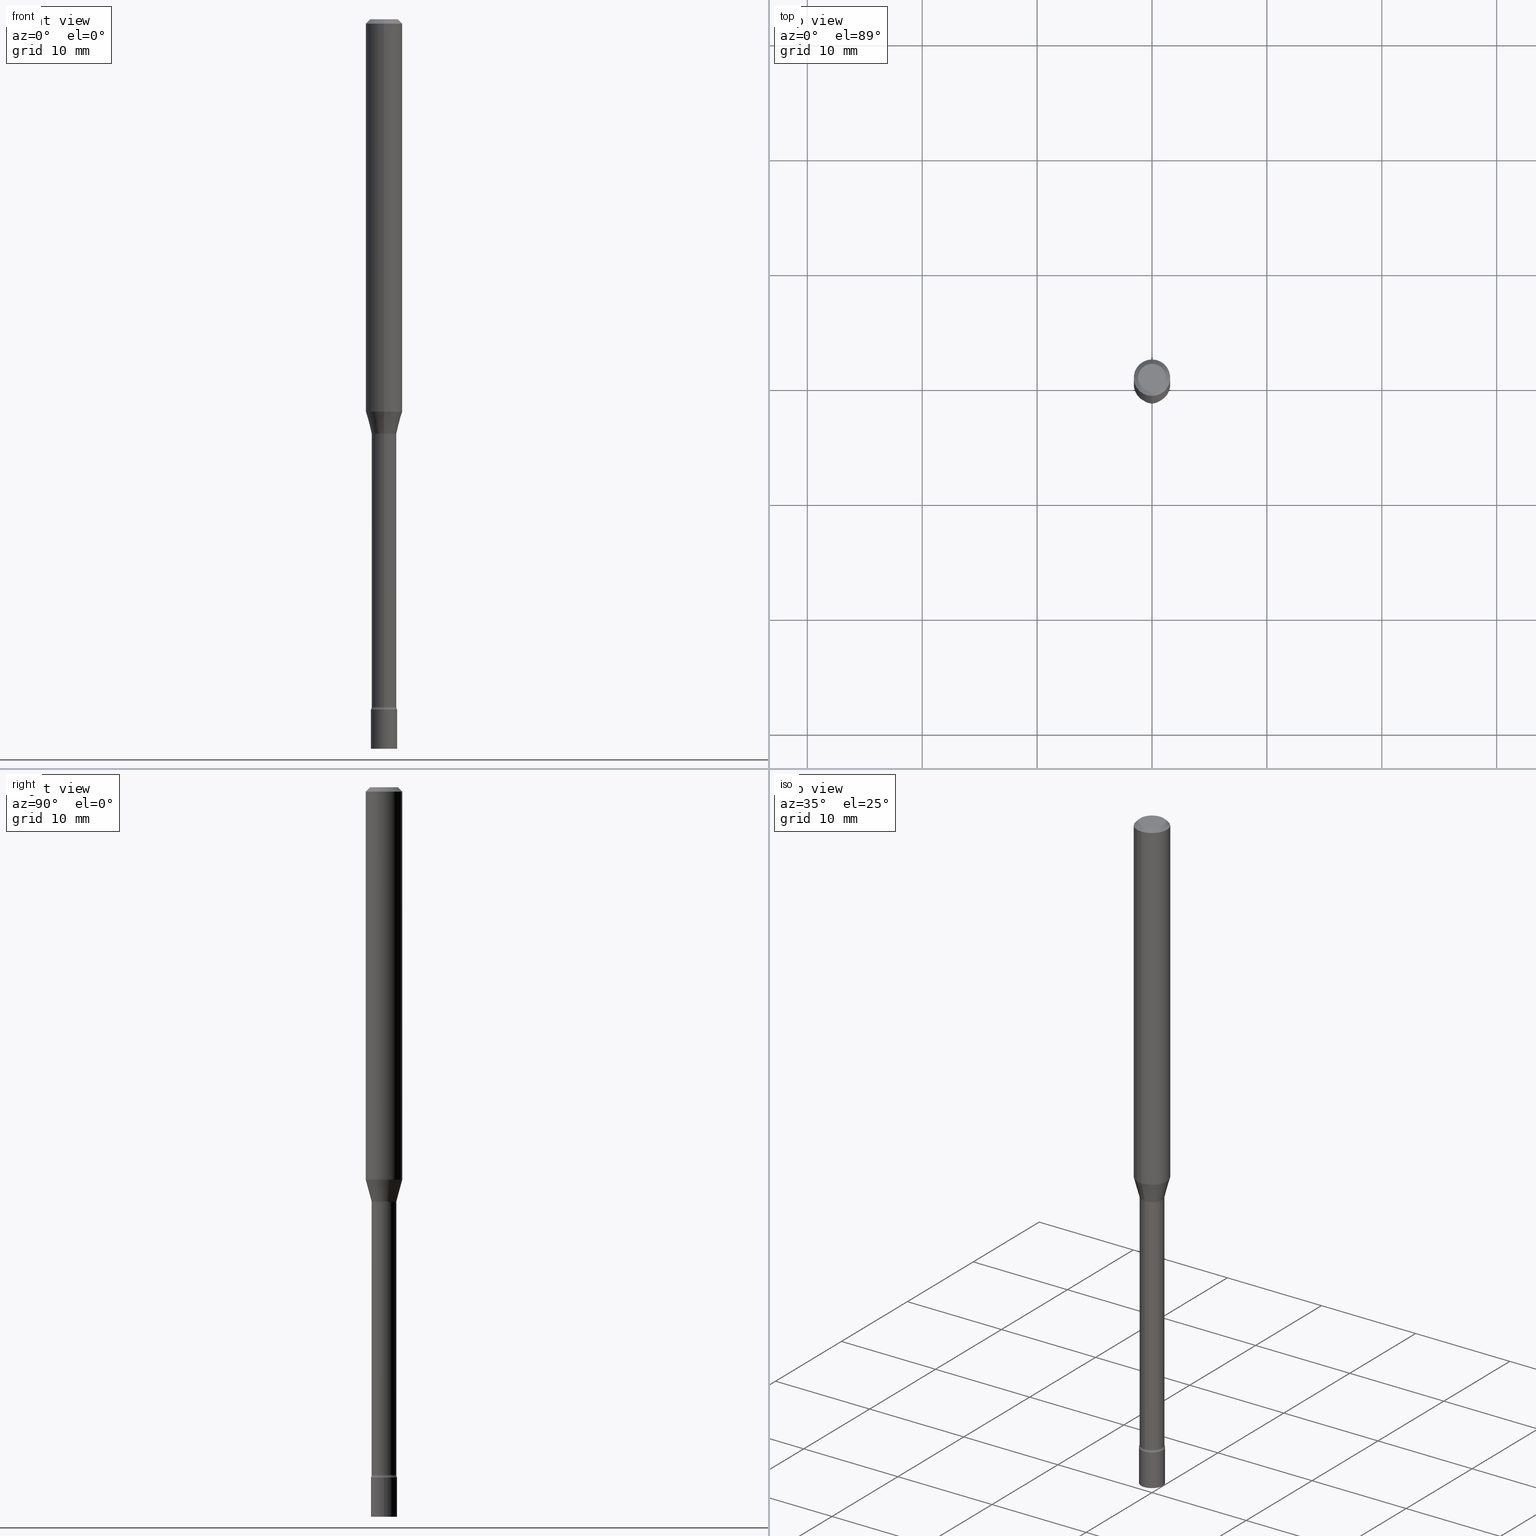
[diagram: canonical four-view strip — front | top / right | iso, engineering-drawing reading convention]
A machine part, canonical four-view strip (front | top / right | iso — engineering-drawing reading convention). The complete STEP part file that produces these views, byte-faithful:
ISO-10303-21;
HEADER;
FILE_DESCRIPTION (( 'STEP AP203' ),
    '1' );
FILE_NAME ('09735.STEP',
    '2024-03-09T01:26:27',
    ( '' ),
    ( '' ),
    'SwSTEP 2.0',
    'SolidWorks 2023',
    '' );
FILE_SCHEMA (( 'CONFIG_CONTROL_DESIGN' ));
ENDSEC;

DATA;
#1 = ORIENTED_EDGE ( 'NONE', *, *, #379, .F. ) ;
#2 = DIRECTION ( 'NONE',  ( 1.000000000000000000, -6.982962677686246989E-15, 0.000000000000000000 ) ) ;
#3 = ORIENTED_EDGE ( 'NONE', *, *, #379, .T. ) ;
#4 = CARTESIAN_POINT ( 'NONE',  ( 6.113672015462842613E-29, -8.728703347107864943E-15, -2.500000000000000000 ) ) ;
#5 = AXIS2_PLACEMENT_3D ( 'NONE', #251, #126, #422 ) ;
#6 = CC_DESIGN_APPROVAL ( #96, ( #69 ) ) ;
#7 = CARTESIAN_POINT ( 'NONE',  ( 3.101519041593418202E-16, 0.04229999999999190657, -2.356414547187247965 ) ) ;
#8 = PRODUCT_DEFINITION ( 'UNKNOWN', '', #69, #354 ) ;
#9 = CARTESIAN_POINT ( 'NONE',  ( -2.953793212660724034E-16, -0.04230000000000836563, -2.356414547187247077 ) ) ;
#10 = DATE_TIME_ROLE ( 'creation_date' ) ;
#11 = ORIENTED_EDGE ( 'NONE', *, *, #13, .T. ) ;
#12 = DIRECTION ( 'NONE',  ( -6.982962677686265922E-15, -1.000000000000000000, 3.483106191921935554E-15 ) ) ;
#13 = EDGE_CURVE ( 'NONE', #449, #453, #165, .T. ) ;
#14 = VERTEX_POINT ( 'NONE', #404 ) ;
#15 = CARTESIAN_POINT ( 'NONE',  ( 0.000000000000000000, 0.000000000000000000, 0.000000000000000000 ) ) ;
#16 = APPROVAL_DATE_TIME ( #60, #96 ) ;
#17 = ORIENTED_EDGE ( 'NONE', *, *, #19, .T. ) ;
#18 = DIRECTION ( 'NONE',  ( -2.445535940486029483E-29, 3.491385198703219756E-15, 1.000000000000000000 ) ) ;
#19 = EDGE_CURVE ( 'NONE', #298, #228, #145, .T. ) ;
#20 = CARTESIAN_POINT ( 'NONE',  ( 3.477394985924490148E-29, -4.964798434735345074E-15, -1.421974787463811118 ) ) ;
#21 = PERSON_AND_ORGANIZATION ( #448, #175 ) ;
#22 = ORIENTED_EDGE ( 'NONE', *, *, #123, .F. ) ;
#23 = PLANE ( 'NONE',  #353 ) ;
#24 = ORIENTED_EDGE ( 'NONE', *, *, #474, .F. ) ;
#25 = AXIS2_PLACEMENT_3D ( 'NONE', #316, #270, #347 ) ;
#26 = AXIS2_PLACEMENT_3D ( 'NONE', #409, #238, #487 ) ;
#27 = CARTESIAN_POINT ( 'NONE',  ( -4.287811248607203282E-16, -0.06250000000000005551, -0.01499999999999981209 ) ) ;
#28 = VERTEX_POINT ( 'NONE', #74 ) ;
#29 = CARTESIAN_POINT ( 'NONE',  ( 5.783533726627847872E-29, -8.257353366364040046E-15, -2.365000000000000213 ) ) ;
#30 = DIRECTION ( 'NONE',  ( -2.445535940486029483E-29, 3.491385198703219756E-15, 1.000000000000000000 ) ) ;
#31 = EDGE_LOOP ( 'NONE', ( #231, #401, #428, #485 ) ) ;
#32 = CIRCLE ( 'NONE', #5, 0.04499999999999999833 ) ;
#33 = CARTESIAN_POINT ( 'NONE',  ( 7.072117627707223109E-46, -1.009655446076081752E-31, -2.891847758451547595E-17 ) ) ;
#34 = DIRECTION ( 'NONE',  ( -6.982962677686266711E-15, -1.000000000000000000, 3.491385198703219756E-15 ) ) ;
#35 = APPROVAL_STATUS ( 'not_yet_approved' ) ;
#36 = EDGE_CURVE ( 'NONE', #453, #472, #233, .T. ) ;
#37 = FACE_OUTER_BOUND ( 'NONE', #93, .T. ) ;
#38 = CLOSED_SHELL ( 'NONE', ( #127, #450, #323, #109 ) ) ;
#39 = LOCAL_TIME ( 20, 26, 27.00000000000000000, #475 ) ;
#40 = EDGE_CURVE ( 'NONE', #228, #180, #68, .T. ) ;
#41 = APPROVAL ( #35, 'UNSPECIFIED' ) ;
#42 = CARTESIAN_POINT ( 'NONE',  ( -4.364351673553584879E-16, -0.06250000000000466294, -1.344612573687108847 ) ) ;
#43 = DATE_AND_TIME ( #46, #152 ) ;
#44 = DIRECTION ( 'NONE',  ( -2.445468806185136597E-29, 3.491481338843145583E-15, 1.000000000000000000 ) ) ;
#45 = DIRECTION ( 'NONE',  ( -2.445535940486029483E-29, 3.491385198703219756E-15, 1.000000000000000000 ) ) ;
#46 = CALENDAR_DATE ( 2024, 8, 3 ) ;
#47 = DIRECTION ( 'NONE',  ( -2.445535940486029483E-29, 3.491385198703219756E-15, 1.000000000000000000 ) ) ;
#48 = VECTOR ( 'NONE', #94, 39.37007874015748143 ) ;
#49 = VECTOR ( 'NONE', #455, 39.37007874015748854 ) ;
#50 = FACE_OUTER_BOUND ( 'NONE', #255, .T. ) ;
#51 = PERSON_AND_ORGANIZATION_ROLE ( 'creator' ) ;
#52 = ORIENTED_EDGE ( 'NONE', *, *, #281, .F. ) ;
#53 = DIRECTION ( 'NONE',  ( -6.982962677686265922E-15, -1.000000000000000000, 3.491385198703219756E-15 ) ) ;
#54 = ORIENTED_EDGE ( 'NONE', *, *, #169, .T. ) ;
#55 = LINE ( 'NONE', #504, #124 ) ;
#56 = ORIENTED_EDGE ( 'NONE', *, *, #123, .T. ) ;
#57 = AXIS2_PLACEMENT_3D ( 'NONE', #154, #30, #190 ) ;
#58 = CIRCLE ( 'NONE', #432, 0.01500000000000001853 ) ;
#59 = FACE_OUTER_BOUND ( 'NONE', #517, .T. ) ;
#60 = DATE_AND_TIME ( #146, #209 ) ;
#61 = ORIENTED_EDGE ( 'NONE', *, *, #509, .T. ) ;
#62 = PERSON_AND_ORGANIZATION_ROLE ( 'creator' ) ;
#63 = ORIENTED_EDGE ( 'NONE', *, *, #400, .T. ) ;
#64 =( LENGTH_UNIT ( ) NAMED_UNIT ( * ) SI_UNIT ( $, .METRE. ) );
#65 = ADVANCED_FACE ( 'NONE', ( #429 ), #198, .T. ) ;
#66 = COORDINATED_UNIVERSAL_TIME_OFFSET ( 5, 0, .BEHIND. ) ;
#67 = EDGE_LOOP ( 'NONE', ( #433, #220, #375, #206 ) ) ;
#68 = CIRCLE ( 'NONE', #279, 0.04230000000000001120 ) ;
#69 = PRODUCT_DEFINITION_FORMATION_WITH_SPECIFIED_SOURCE ( 'ANY', '', #203, .NOT_KNOWN. ) ;
#70 = DIRECTION ( 'NONE',  ( -6.982962677686265133E-15, -1.000000000000000000, 6.070773319253918263E-15 ) ) ;
#71 = ORIENTED_EDGE ( 'NONE', *, *, #488, .F. ) ;
#72 = CARTESIAN_POINT ( 'NONE',  ( 3.142333204959430697E-16, 0.04499999999999127615, -2.500000000000000000 ) ) ;
#73 = DIRECTION ( 'NONE',  ( 2.445535940486029483E-29, -3.491385198703219756E-15, -1.000000000000000000 ) ) ;
#74 = CARTESIAN_POINT ( 'NONE',  ( 3.197442310921028066E-16, 0.04499999999999173411, -2.365000000000000213 ) ) ;
#75 = ADVANCED_BREP_SHAPE_REPRESENTATION ( '09735', ( #119, #300, #77 ), #408 ) ;
#76 = AXIS2_PLACEMENT_3D ( 'NONE', #183, #143, #306 ) ;
#77 = AXIS2_PLACEMENT_3D ( 'NONE', #268, #446, #159 ) ;
#78 = ADVANCED_FACE ( 'NONE', ( #395 ), #390, .F. ) ;
#79 = ORIENTED_EDGE ( 'NONE', *, *, #478, .F. ) ;
#80 = CARTESIAN_POINT ( 'NONE',  ( -0.04499999999999999833, 3.197442310920450718E-16, -2.213520790614707560E-30 ) ) ;
#81 = APPROVAL ( #100, 'UNSPECIFIED' ) ;
#82 = EDGE_LOOP ( 'NONE', ( #101, #378, #351, #1 ) ) ;
#83 = CIRCLE ( 'NONE', #391, 0.04499999999999999833 ) ;
#84 = DIRECTION ( 'NONE',  ( 2.445535940486029203E-29, -3.491385198703219756E-15, -1.000000000000000000 ) ) ;
#85 = ORIENTED_EDGE ( 'NONE', *, *, #106, .T. ) ;
#86 = DIRECTION ( 'NONE',  ( 7.105427357600998703E-15, 1.000000000000000000, 0.000000000000000000 ) ) ;
#87 = CARTESIAN_POINT ( 'NONE',  ( -2.989484015155409821E-16, -0.04281111260566894394, -1.418092501787272974 ) ) ;
#88 = CIRCLE ( 'NONE', #131, 0.04499999999999999833 ) ;
#89 = ORIENTED_EDGE ( 'NONE', *, *, #191, .F. ) ;
#90 = DIMENSIONAL_EXPONENTS ( 1.000000000000000000, 0.000000000000000000, 0.000000000000000000, 0.000000000000000000, 0.000000000000000000, 0.000000000000000000, 0.000000000000000000 ) ;
#91 = DIRECTION ( 'NONE',  ( -2.445535940486029483E-29, 3.491385198703219756E-15, 1.000000000000000000 ) ) ;
#92 = CARTESIAN_POINT ( 'NONE',  ( 5.783692499249460010E-29, -8.257125994933115699E-15, -2.365000000000000213 ) ) ;
#93 = EDGE_LOOP ( 'NONE', ( #11, #85 ) ) ;
#94 = DIRECTION ( 'NONE',  ( -2.445535940486029483E-29, 3.491385198703219756E-15, 1.000000000000000000 ) ) ;
#95 = ORIENTED_EDGE ( 'NONE', *, *, #286, .F. ) ;
#96 = APPROVAL ( #505, 'UNSPECIFIED' ) ;
#97 = CARTESIAN_POINT ( 'NONE',  ( 4.440892098500625669E-16, 0.06250000000000000000, -2.182115749189512101E-16 ) ) ;
#98 = EDGE_CURVE ( 'NONE', #176, #219, #459, .T. ) ;
#99 = DIRECTION ( 'NONE',  ( -2.445535940486029483E-29, 3.491385198703219756E-15, 1.000000000000000000 ) ) ;
#100 = APPROVAL_STATUS ( 'not_yet_approved' ) ;
#101 = ORIENTED_EDGE ( 'NONE', *, *, #373, .F. ) ;
#102 = AXIS2_PLACEMENT_3D ( 'NONE', #129, #47, #216 ) ;
#103 = SECURITY_CLASSIFICATION ( '', '', #512 ) ;
#104 = FACE_OUTER_BOUND ( 'NONE', #141, .T. ) ;
#105 = ORIENTED_EDGE ( 'NONE', *, *, #509, .F. ) ;
#106 = EDGE_CURVE ( 'NONE', #453, #449, #193, .T. ) ;
#107 = FACE_OUTER_BOUND ( 'NONE', #31, .T. ) ;
#108 = ORIENTED_EDGE ( 'NONE', *, *, #286, .T. ) ;
#109 = ADVANCED_FACE ( 'NONE', ( #435 ), #23, .T. ) ;
#110 = AXIS2_PLACEMENT_3D ( 'NONE', #202, #321, #365 ) ;
#111 = DIRECTION ( 'NONE',  ( -2.445535940486029483E-29, 3.491385198703219756E-15, 1.000000000000000000 ) ) ;
#112 = CARTESIAN_POINT ( 'NONE',  ( 3.668303910729051459E-31, -5.237077798054840974E-17, -0.01500000000000003067 ) ) ;
#113 = DIRECTION ( 'NONE',  ( -2.445535940486029483E-29, 3.491385198703219756E-15, 1.000000000000000000 ) ) ;
#114 = ADVANCED_FACE ( 'NONE', ( #396 ), #245, .T. ) ;
#115 = DIRECTION ( 'NONE',  ( -2.445535940486029483E-29, 3.491385198703219756E-15, 1.000000000000000000 ) ) ;
#116 = UNCERTAINTY_MEASURE_WITH_UNIT (LENGTH_MEASURE( 1.000000000000000082E-05 ), #393, 'distance_accuracy_value', 'NONE');
#117 = VECTOR ( 'NONE', #358, 39.37007874015748143 ) ;
#118 = CIRCLE ( 'NONE', #451, 0.04230000000000013610 ) ;
#119 = MANIFOLD_SOLID_BREP ( 'Body-Move/Copy2[1]', #38 ) ;
#120 = CARTESIAN_POINT ( 'NONE',  ( -4.001237614313663153E-16, -0.05730000000000835814, -2.356414547187247521 ) ) ;
#121 = CARTESIAN_POINT ( 'NONE',  ( -4.364351673553916201E-16, -0.06250000000000000000, 2.182115749189512101E-16 ) ) ;
#122 = CARTESIAN_POINT ( 'NONE',  ( 4.071409875905721427E-16, 0.05729999999999503546, -1.421974787463811563 ) ) ;
#123 = EDGE_CURVE ( 'NONE', #287, #298, #234, .T. ) ;
#124 = VECTOR ( 'NONE', #297, 39.37007874015748143 ) ;
#125 = DIRECTION ( 'NONE',  ( 6.982962677686265922E-15, 1.000000000000000000, -3.491385198703219756E-15 ) ) ;
#126 = DIRECTION ( 'NONE',  ( -2.445468806185136597E-29, 3.491481338843145583E-15, 1.000000000000000000 ) ) ;
#127 = ADVANCED_FACE ( 'NONE', ( #386 ), #392, .T. ) ;
#128 = ORIENTED_EDGE ( 'NONE', *, *, #361, .F. ) ;
#129 = CARTESIAN_POINT ( 'NONE',  ( 5.762538269587287845E-29, -8.227377418082797086E-15, -2.356414547187247965 ) ) ;
#130 = CONICAL_SURFACE ( 'NONE', #110, 0.04281111260566399651, 0.2617993877991504625 ) ;
#131 = AXIS2_PLACEMENT_3D ( 'NONE', #406, #196, #490 ) ;
#132 = ORIENTED_EDGE ( 'NONE', *, *, #474, .T. ) ;
#133 = CARTESIAN_POINT ( 'NONE',  ( 0.04499999999999999833, -3.142333204958819823E-16, 2.194279549108170967E-30 ) ) ;
#134 = CYLINDRICAL_SURFACE ( 'NONE', #239, 0.06250000000000000000 ) ;
#135 = ADVANCED_FACE ( 'NONE', ( #439 ), #360, .T. ) ;
#136 = ORIENTED_EDGE ( 'NONE', *, *, #307, .F. ) ;
#137 = DIRECTION ( 'NONE',  ( -2.445468806185136597E-29, 3.491481338843145583E-15, 1.000000000000000000 ) ) ;
#138 = DATE_TIME_ROLE ( 'classification_date' ) ;
#139 = ORIENTED_EDGE ( 'NONE', *, *, #197, .F. ) ;
#140 = CALENDAR_DATE ( 2024, 8, 3 ) ;
#141 = EDGE_LOOP ( 'NONE', ( #139, #267, #326, #150 ) ) ;
#142 = AXIS2_PLACEMENT_3D ( 'NONE', #168, #413, #170 ) ;
#143 = DIRECTION ( 'NONE',  ( 2.445535940486029483E-29, -3.491385198703219756E-15, -1.000000000000000000 ) ) ;
#144 = DATE_AND_TIME ( #184, #39 ) ;
#145 = LINE ( 'NONE', #440, #289 ) ;
#146 = CALENDAR_DATE ( 2024, 8, 3 ) ;
#147 = CARTESIAN_POINT ( 'NONE',  ( -4.364351673553912750E-16, -0.06250000000000005551, -0.01499999999999981209 ) ) ;
#148 = DIRECTION ( 'NONE',  ( 6.982962677686265922E-15, 1.000000000000000000, -3.483106191921935554E-15 ) ) ;
#149 = DIRECTION ( 'NONE',  ( -6.982962677686265133E-15, -1.000000000000000000, 6.070773319253918263E-15 ) ) ;
#150 = ORIENTED_EDGE ( 'NONE', *, *, #410, .F. ) ;
#151 = AXIS2_PLACEMENT_3D ( 'NONE', #479, #113, #34 ) ;
#152 = LOCAL_TIME ( 20, 26, 27.00000000000000000, #201 ) ;
#153 = APPROVAL_PERSON_ORGANIZATION ( #468, #81, #263 ) ;
#154 = CARTESIAN_POINT ( 'NONE',  ( 3.467996180054525973E-29, -4.951107171132105151E-15, -1.418092501787273196 ) ) ;
#155 = ADVANCED_FACE ( 'NONE', ( #107 ), #494, .T. ) ;
#156 = EDGE_LOOP ( 'NONE', ( #340, #132, #421, #506 ) ) ;
#157 = EDGE_CURVE ( 'NONE', #176, #472, #235, .T. ) ;
#158 = DIRECTION ( 'NONE',  ( -2.445535940486029483E-29, 3.491385198703219756E-15, 1.000000000000000000 ) ) ;
#159 = DIRECTION ( 'NONE',  ( 1.000000000000000000, 0.000000000000000000, 0.000000000000000000 ) ) ;
#160 = CC_DESIGN_DATE_AND_TIME_ASSIGNMENT ( #204, #10, ( #8 ) ) ;
#161 = AXIS2_PLACEMENT_3D ( 'NONE', #120, #164, #322 ) ;
#162 = CARTESIAN_POINT ( 'NONE',  ( -0.04499999999999999833, -8.173284125643907127E-15, -2.365000000000000213 ) ) ;
#163 = ORIENTED_EDGE ( 'NONE', *, *, #269, .F. ) ;
#164 = DIRECTION ( 'NONE',  ( -1.000000000000000000, 6.982962677686265922E-15, -4.883557194083112340E-29 ) ) ;
#165 = CIRCLE ( 'NONE', #151, 0.04749999999999999362 ) ;
#166 = AXIS2_PLACEMENT_3D ( 'NONE', #285, #288, #53 ) ;
#167 = DIRECTION ( 'NONE',  ( -1.000000000000000000, 6.982962677686265922E-15, -4.883557194083112340E-29 ) ) ;
#168 = CARTESIAN_POINT ( 'NONE',  ( 0.000000000000000000, 0.000000000000000000, 0.000000000000000000 ) ) ;
#169 = EDGE_CURVE ( 'NONE', #287, #192, #237, .T. ) ;
#170 = DIRECTION ( 'NONE',  ( -6.982962677686266711E-15, -1.000000000000000000, 3.491385198703219756E-15 ) ) ;
#171 = PERSON_AND_ORGANIZATION ( #448, #175 ) ;
#172 = VERTEX_POINT ( 'NONE', #162 ) ;
#173 = DIRECTION ( 'NONE',  ( -2.445535940486029483E-29, 3.491385198703219756E-15, 1.000000000000000000 ) ) ;
#174 = CC_DESIGN_DATE_AND_TIME_ASSIGNMENT ( #144, #138, ( #103 ) ) ;
#175 = ORGANIZATION ( 'UNSPECIFIED', 'UNSPECIFIED', '' ) ;
#176 = VERTEX_POINT ( 'NONE', #42 ) ;
#177 = DIRECTION ( 'NONE',  ( -2.445535940486029483E-29, 3.491385198703219756E-15, 1.000000000000000000 ) ) ;
#178 = ADVANCED_FACE ( 'NONE', ( #486 ), #130, .T. ) ;
#179 = PERSON_AND_ORGANIZATION ( #448, #175 ) ;
#180 = VERTEX_POINT ( 'NONE', #276 ) ;
#181 = EDGE_LOOP ( 'NONE', ( #258, #436, #355, #303 ) ) ;
#182 = DIRECTION ( 'NONE',  ( 1.000000000000000000, -6.982962677686265922E-15, 4.876176775795935793E-29 ) ) ;
#183 = CARTESIAN_POINT ( 'NONE',  ( 3.668303910729051459E-31, -5.237077798054840974E-17, -0.01500000000000003067 ) ) ;
#184 = CALENDAR_DATE ( 2024, 8, 3 ) ;
#185 = EDGE_LOOP ( 'NONE', ( #52, #223, #277, #425 ) ) ;
#186 = AXIS2_PLACEMENT_3D ( 'NONE', #280, #275, #329 ) ;
#187 = PERSON_AND_ORGANIZATION ( #448, #175 ) ;
#188 = DIRECTION ( 'NONE',  ( -6.982962677686265133E-15, -1.000000000000000000, 6.458269488567996591E-15 ) ) ;
#189 = DIRECTION ( 'NONE',  ( -2.445535940486029483E-29, 3.491385198703219756E-15, 1.000000000000000000 ) ) ;
#190 = DIRECTION ( 'NONE',  ( -6.982962677686265133E-15, -1.000000000000000000, 6.381165607227956499E-15 ) ) ;
#191 = EDGE_CURVE ( 'NONE', #368, #14, #407, .T. ) ;
#192 = VERTEX_POINT ( 'NONE', #447 ) ;
#193 = CIRCLE ( 'NONE', #328, 0.04749999999999999362 ) ;
#194 = VECTOR ( 'NONE', #380, 39.37007874015748143 ) ;
#195 = ORIENTED_EDGE ( 'NONE', *, *, #191, .T. ) ;
#196 = DIRECTION ( 'NONE',  ( -2.445468806185136597E-29, 3.491481338843145583E-15, 1.000000000000000000 ) ) ;
#197 = EDGE_CURVE ( 'NONE', #336, #414, #362, .T. ) ;
#198 = CONICAL_SURFACE ( 'NONE', #499, 0.06250000000000000000, 0.7853981633974483900 ) ;
#199 = CARTESIAN_POINT ( 'NONE',  ( 3.316907271900976096E-16, 0.04749999999999999362, -1.803000357306606801E-16 ) ) ;
#200 = TOROIDAL_SURFACE ( 'NONE', #218, 0.05730000000000000371, 0.01500000000000001506 ) ;
#201 = COORDINATED_UNIVERSAL_TIME_OFFSET ( 5, 0, .BEHIND. ) ;
#202 = CARTESIAN_POINT ( 'NONE',  ( 3.467996180054525973E-29, -4.951107171132105151E-15, -1.418092501787273196 ) ) ;
#203 = PRODUCT ( '09735', '09735', '', ( #352 ) ) ;
#204 = DATE_AND_TIME ( #374, #227 ) ;
#205 = ORIENTED_EDGE ( 'NONE', *, *, #36, .F. ) ;
#206 = ORIENTED_EDGE ( 'NONE', *, *, #400, .F. ) ;
#207 = DIRECTION ( 'NONE',  ( -6.982962677686266711E-15, -1.000000000000000000, 6.458269488567977659E-15 ) ) ;
#208 = CIRCLE ( 'NONE', #265, 0.06250000000000000000 ) ;
#209 = LOCAL_TIME ( 20, 26, 27.00000000000000000, #377 ) ;
#210 = FACE_OUTER_BOUND ( 'NONE', #250, .T. ) ;
#211 = COORDINATED_UNIVERSAL_TIME_OFFSET ( 5, 0, .BEHIND. ) ;
#212 = EDGE_LOOP ( 'NONE', ( #56, #17, #503, #343 ) ) ;
#213 = CC_DESIGN_PERSON_AND_ORGANIZATION_ASSIGNMENT ( #21, #387, ( #103 ) ) ;
#214 = CYLINDRICAL_SURFACE ( 'NONE', #443, 0.04499999999999999833 ) ;
#215 = VERTEX_POINT ( 'NONE', #324 ) ;
#216 = DIRECTION ( 'NONE',  ( -6.982962677686265922E-15, -1.000000000000000000, 3.491385198703219756E-15 ) ) ;
#217 = EDGE_CURVE ( 'NONE', #180, #228, #471, .T. ) ;
#218 = AXIS2_PLACEMENT_3D ( 'NONE', #20, #430, #427 ) ;
#219 = VERTEX_POINT ( 'NONE', #444 ) ;
#220 = ORIENTED_EDGE ( 'NONE', *, *, #269, .T. ) ;
#221 = DIRECTION ( 'NONE',  ( -2.445535940486029483E-29, 3.491385198703219756E-15, 1.000000000000000000 ) ) ;
#222 = PERSON_AND_ORGANIZATION_ROLE ( 'design_supplier' ) ;
#223 = ORIENTED_EDGE ( 'NONE', *, *, #424, .F. ) ;
#224 = DIRECTION ( 'NONE',  ( -6.982962677686266711E-15, -1.000000000000000000, 3.491385198703219756E-15 ) ) ;
#225 = APPROVAL_ROLE ( '' ) ;
#226 = AXIS2_PLACEMENT_3D ( 'NONE', #199, #84, #125 ) ;
#227 = LOCAL_TIME ( 20, 26, 27.00000000000000000, #211 ) ;
#228 = VERTEX_POINT ( 'NONE', #236 ) ;
#229 = EDGE_CURVE ( 'NONE', #14, #368, #88, .T. ) ;
#230 = DIRECTION ( 'NONE',  ( -1.000000000000000000, 6.982962677686265922E-15, -4.876176775795935793E-29 ) ) ;
#231 = ORIENTED_EDGE ( 'NONE', *, *, #98, .T. ) ;
#232 = DIRECTION ( 'NONE',  ( -6.982962677686265133E-15, -1.000000000000000000, 6.381165607227956499E-15 ) ) ;
#233 = LINE ( 'NONE', #27, #117 ) ;
#234 = CIRCLE ( 'NONE', #262, 0.04230000000000013610 ) ;
#235 = LINE ( 'NONE', #121, #482 ) ;
#236 = CARTESIAN_POINT ( 'NONE',  ( 3.005595772265802916E-16, 0.04229999999999504295, -1.421974787463811563 ) ) ;
#237 = CIRCLE ( 'NONE', #161, 0.01499999999999999424 ) ;
#238 = DIRECTION ( 'NONE',  ( -2.445535940486029483E-29, 3.491385198703219756E-15, 1.000000000000000000 ) ) ;
#239 = AXIS2_PLACEMENT_3D ( 'NONE', #15, #253, #244 ) ;
#240 = EDGE_LOOP ( 'NONE', ( #205, #469, #507, #3 ) ) ;
#241 = ADVANCED_FACE ( 'NONE', ( #37 ), #452, .F. ) ;
#242 = LINE ( 'NONE', #80, #290 ) ;
#243 = DIRECTION ( 'NONE',  ( -2.445535940486029483E-29, 3.491385198703219756E-15, 1.000000000000000000 ) ) ;
#244 = DIRECTION ( 'NONE',  ( -6.982962677686265922E-15, -1.000000000000000000, 3.491385198703219362E-15 ) ) ;
#245 = CONICAL_SURFACE ( 'NONE', #57, 0.04281111260566399651, 0.2617993877991504625 ) ;
#246 = AXIS2_PLACEMENT_3D ( 'NONE', #344, #309, #260 ) ;
#247 = LOCAL_TIME ( 20, 26, 27.00000000000000000, #66 ) ;
#248 = ORIENTED_EDGE ( 'NONE', *, *, #307, .T. ) ;
#249 = FACE_OUTER_BOUND ( 'NONE', #82, .T. ) ;
#250 = EDGE_LOOP ( 'NONE', ( #95, #252, #338, #128 ) ) ;
#251 = CARTESIAN_POINT ( 'NONE',  ( 5.783533726627847872E-29, -8.257353366364040046E-15, -2.365000000000000213 ) ) ;
#252 = ORIENTED_EDGE ( 'NONE', *, *, #229, .T. ) ;
#253 = DIRECTION ( 'NONE',  ( -2.445535940486029483E-29, 3.491385198703219756E-15, 1.000000000000000000 ) ) ;
#254 = SHAPE_DEFINITION_REPRESENTATION ( #464, #75 ) ;
#255 = EDGE_LOOP ( 'NONE', ( #105, #79 ) ) ;
#256 = CC_DESIGN_APPROVAL ( #81, ( #103 ) ) ;
#257 = CARTESIAN_POINT ( 'NONE',  ( -3.773273898774340269E-16, -0.04749999999999999362, 1.369223193538874600E-16 ) ) ;
#258 = ORIENTED_EDGE ( 'NONE', *, *, #106, .F. ) ;
#259 = DIRECTION ( 'NONE',  ( -2.445535940486029483E-29, 3.491385198703219756E-15, 1.000000000000000000 ) ) ;
#260 = DIRECTION ( 'NONE',  ( 7.105427357600997914E-15, 1.000000000000000000, 0.000000000000000000 ) ) ;
#261 = CARTESIAN_POINT ( 'NONE',  ( 5.783692499249460010E-29, -8.257125994933115699E-15, -2.365000000000000213 ) ) ;
#262 = AXIS2_PLACEMENT_3D ( 'NONE', #473, #115, #511 ) ;
#263 = APPROVAL_ROLE ( '' ) ;
#264 = FACE_OUTER_BOUND ( 'NONE', #212, .T. ) ;
#265 = AXIS2_PLACEMENT_3D ( 'NONE', #112, #189, #437 ) ;
#266 = DIRECTION ( 'NONE',  ( -6.982962677686266711E-15, -1.000000000000000000, 3.491385198703219756E-15 ) ) ;
#267 = ORIENTED_EDGE ( 'NONE', *, *, #281, .T. ) ;
#268 = CARTESIAN_POINT ( 'NONE',  ( 0.000000000000000000, 0.000000000000000000, 0.000000000000000000 ) ) ;
#269 = EDGE_CURVE ( 'NONE', #336, #219, #284, .T. ) ;
#270 = DIRECTION ( 'NONE',  ( -2.445468806185136597E-29, 3.491481338843145583E-15, 1.000000000000000000 ) ) ;
#271 = EDGE_LOOP ( 'NONE', ( #24, #22, #54, #61 ) ) ;
#272 = CARTESIAN_POINT ( 'NONE',  ( 3.668303910729051459E-31, -5.237077798054840974E-17, -0.01500000000000003067 ) ) ;
#273 = CIRCLE ( 'NONE', #330, 0.01500000000000001853 ) ;
#274 = CIRCLE ( 'NONE', #282, 0.06250000000000000000 ) ;
#275 = DIRECTION ( 'NONE',  ( -2.445535940486029483E-29, 3.491385198703219756E-15, 1.000000000000000000 ) ) ;
#276 = CARTESIAN_POINT ( 'NONE',  ( -2.953793212660943436E-16, -0.04230000000000497945, -1.421974787463810896 ) ) ;
#277 = ORIENTED_EDGE ( 'NONE', *, *, #410, .T. ) ;
#278 = PRODUCT_RELATED_PRODUCT_CATEGORY ( 'detail', '', ( #203 ) ) ;
#279 = AXIS2_PLACEMENT_3D ( 'NONE', #519, #259, #188 ) ;
#280 = CARTESIAN_POINT ( 'NONE',  ( 3.477490449207734053E-29, -4.964661725880308206E-15, -1.421974787463811118 ) ) ;
#281 = EDGE_CURVE ( 'NONE', #336, #228, #273, .T. ) ;
#282 = AXIS2_PLACEMENT_3D ( 'NONE', #420, #91, #12 ) ;
#283 = APPROVAL_PERSON_ORGANIZATION ( #171, #96, #225 ) ;
#284 = LINE ( 'NONE', #364, #49 ) ;
#285 = CARTESIAN_POINT ( 'NONE',  ( 3.142333204959397663E-16, 0.04499999999999174105, -2.365000000000000213 ) ) ;
#286 = EDGE_CURVE ( 'NONE', #14, #172, #242, .T. ) ;
#287 = VERTEX_POINT ( 'NONE', #9 ) ;
#288 = DIRECTION ( 'NONE',  ( -2.445535940486029203E-29, 3.491385198703219756E-15, 1.000000000000000000 ) ) ;
#289 = VECTOR ( 'NONE', #158, 39.37007874015748143 ) ;
#290 = VECTOR ( 'NONE', #466, 39.37007874015748143 ) ;
#291 = ADVANCED_FACE ( 'NONE', ( #249 ), #134, .T. ) ;
#292 = APPLICATION_CONTEXT ( 'configuration controlled 3d designs of mechanical parts and assemblies' ) ;
#293 = EDGE_LOOP ( 'NONE', ( #163, #397, #63, #71 ) ) ;
#294 = DIRECTION ( 'NONE',  ( -2.445468806185136877E-29, 3.491481338843145188E-15, 1.000000000000000000 ) ) ;
#295 = CARTESIAN_POINT ( 'NONE',  ( 0.000000000000000000, 0.000000000000000000, 0.000000000000000000 ) ) ;
#296 = ORIENTED_EDGE ( 'NONE', *, *, #382, .T. ) ;
#297 = DIRECTION ( 'NONE',  ( 4.937700262164548042E-15, 0.7071067811865451302, -0.7071067811865499042 ) ) ;
#298 = VERTEX_POINT ( 'NONE', #7 ) ;
#299 = CYLINDRICAL_SURFACE ( 'NONE', #489, 0.04230000000000006671 ) ;
#300 = MANIFOLD_SOLID_BREP ( 'Body-Move/Copy2[2]', #508 ) ;
#301 = LENGTH_MEASURE_WITH_UNIT ( LENGTH_MEASURE( 0.02539999999999999897 ), #64 );
#302 = AXIS2_PLACEMENT_3D ( 'NONE', #419, #177, #232 ) ;
#303 = ORIENTED_EDGE ( 'NONE', *, *, #394, .F. ) ;
#304 = CC_DESIGN_APPROVAL ( #41, ( #8 ) ) ;
#305 = CARTESIAN_POINT ( 'NONE',  ( 0.04499999999999999833, -8.571586686859921733E-15, -2.365000000000000213 ) ) ;
#306 = DIRECTION ( 'NONE',  ( 6.982962677686265922E-15, 1.000000000000000000, -3.483106191921935554E-15 ) ) ;
#307 = EDGE_CURVE ( 'NONE', #465, #172, #510, .T. ) ;
#308 = DATE_AND_TIME ( #140, #247 ) ;
#309 = DIRECTION ( 'NONE',  ( 1.000000000000000000, -7.105427357601001070E-15, 4.926314331164936241E-29 ) ) ;
#310 = DIRECTION ( 'NONE',  ( -2.445535940486029483E-29, 3.491385198703219756E-15, 1.000000000000000000 ) ) ;
#311 = CARTESIAN_POINT ( 'NONE',  ( 3.288298374981245001E-29, -4.694560437761416498E-15, -1.344612573687109069 ) ) ;
#312 = AXIS2_PLACEMENT_3D ( 'NONE', #4, #44, #2 ) ;
#313 = AXIS2_PLACEMENT_3D ( 'NONE', #29, #470, #182 ) ;
#314 = ADVANCED_FACE ( 'NONE', ( #50 ), #415, .F. ) ;
#315 = PERSON_AND_ORGANIZATION ( #448, #175 ) ;
#316 = CARTESIAN_POINT ( 'NONE',  ( 0.000000000000000000, 0.000000000000000000, 0.000000000000000000 ) ) ;
#317 = APPLICATION_PROTOCOL_DEFINITION ( 'international standard', 'config_control_design', 1994, #350 ) ;
#318 = CARTESIAN_POINT ( 'NONE',  ( 5.762538269587287845E-29, -8.227377418082797086E-15, -2.356414547187247965 ) ) ;
#319 = VECTOR ( 'NONE', #498, 39.37007874015748854 ) ;
#320 = CC_DESIGN_SECURITY_CLASSIFICATION ( #103, ( #69 ) ) ;
#321 = DIRECTION ( 'NONE',  ( -2.445535940486029483E-29, 3.491385198703219756E-15, 1.000000000000000000 ) ) ;
#322 = DIRECTION ( 'NONE',  ( -6.982962677686262766E-15, -1.000000000000000000, 0.000000000000000000 ) ) ;
#323 = ADVANCED_FACE ( 'NONE', ( #210 ), #214, .T. ) ;
#324 = CARTESIAN_POINT ( 'NONE',  ( 4.440892098500956497E-16, 0.06249999999999993755, -0.01500000000000024751 ) ) ;
#325 = APPROVAL_ROLE ( '' ) ;
#326 = ORIENTED_EDGE ( 'NONE', *, *, #40, .T. ) ;
#327 = CARTESIAN_POINT ( 'NONE',  ( -4.001237614313882555E-16, -0.05730000000000497196, -1.421974787463810896 ) ) ;
#328 = AXIS2_PLACEMENT_3D ( 'NONE', #33, #111, #266 ) ;
#329 = DIRECTION ( 'NONE',  ( -6.982962677686265133E-15, -1.000000000000000000, 6.458269488567996591E-15 ) ) ;
#330 = AXIS2_PLACEMENT_3D ( 'NONE', #122, #359, #86 ) ;
#331 = CARTESIAN_POINT ( 'NONE',  ( -2.953793212661295465E-16, -0.04230000000000006671, 1.476855939051464272E-16 ) ) ;
#332 = LINE ( 'NONE', #331, #48 ) ;
#333 = ADVANCED_FACE ( 'NONE', ( #59 ), #463, .T. ) ;
#334 = ORIENTED_EDGE ( 'NONE', *, *, #361, .T. ) ;
#335 = CARTESIAN_POINT ( 'NONE',  ( 5.783533726627847872E-29, -8.257353366364040046E-15, -2.365000000000000213 ) ) ;
#336 = VERTEX_POINT ( 'NONE', #376 ) ;
#337 = LINE ( 'NONE', #97, #194 ) ;
#338 = ORIENTED_EDGE ( 'NONE', *, *, #416, .T. ) ;
#339 = EDGE_CURVE ( 'NONE', #287, #180, #332, .T. ) ;
#340 = ORIENTED_EDGE ( 'NONE', *, *, #382, .F. ) ;
#341 = FACE_OUTER_BOUND ( 'NONE', #418, .T. ) ;
#342 = TOROIDAL_SURFACE ( 'NONE', #102, 0.05730000000000012861, 0.01499999999999998904 ) ;
#343 = ORIENTED_EDGE ( 'NONE', *, *, #339, .F. ) ;
#344 = CARTESIAN_POINT ( 'NONE',  ( 4.071409875905959072E-16, 0.05729999999999189908, -2.356414547187247965 ) ) ;
#345 = CC_DESIGN_PERSON_AND_ORGANIZATION_ASSIGNMENT ( #369, #51, ( #8 ) ) ;
#346 =( NAMED_UNIT ( * ) SI_UNIT ( $, .STERADIAN. ) SOLID_ANGLE_UNIT ( ) );
#347 = DIRECTION ( 'NONE',  ( 1.000000000000000000, -6.982962677686266711E-15, 4.876176775795935793E-29 ) ) ;
#348 =( NAMED_UNIT ( * ) PLANE_ANGLE_UNIT ( ) SI_UNIT ( $, .RADIAN. ) );
#349 = PLANE ( 'NONE',  #313 ) ;
#350 = APPLICATION_CONTEXT ( 'configuration controlled 3d designs of mechanical parts and assemblies' ) ;
#351 = ORIENTED_EDGE ( 'NONE', *, *, #157, .T. ) ;
#352 = MECHANICAL_CONTEXT ( 'NONE', #292, 'mechanical' ) ;
#353 = AXIS2_PLACEMENT_3D ( 'NONE', #72, #357, #230 ) ;
#354 = DESIGN_CONTEXT ( 'detailed design', #350, 'design' ) ;
#355 = ORIENTED_EDGE ( 'NONE', *, *, #438, .T. ) ;
#356 = VECTOR ( 'NONE', #294, 39.37007874015748143 ) ;
#357 = DIRECTION ( 'NONE',  ( 2.438088387897960049E-29, -3.491481338843145188E-15, -1.000000000000000000 ) ) ;
#358 = DIRECTION ( 'NONE',  ( -4.851104656540964275E-15, -0.7071067811865500152, -0.7071067811865450192 ) ) ;
#359 = DIRECTION ( 'NONE',  ( 1.000000000000000000, -7.105427357601001070E-15, 4.926314331164936241E-29 ) ) ;
#360 = CONICAL_SURFACE ( 'NONE', #76, 0.06250000000000000000, 0.7853981633974483900 ) ;
#361 = EDGE_CURVE ( 'NONE', #172, #465, #32, .T. ) ;
#362 = CIRCLE ( 'NONE', #26, 0.04281111260566399651 ) ;
#363 = CC_DESIGN_PERSON_AND_ORGANIZATION_ASSIGNMENT ( #315, #398, ( #203 ) ) ;
#364 = CARTESIAN_POINT ( 'NONE',  ( 3.041912507176566835E-16, 0.04281111260565904214, -1.418092501787273418 ) ) ;
#365 = DIRECTION ( 'NONE',  ( -6.982962677686265133E-15, -1.000000000000000000, 6.381165607227956499E-15 ) ) ;
#366 = ADVANCED_FACE ( 'NONE', ( #461 ), #342, .F. ) ;
#367 = DIRECTION ( 'NONE',  ( -2.445535940486029483E-29, 3.491385198703219756E-15, 1.000000000000000000 ) ) ;
#368 = VERTEX_POINT ( 'NONE', #495 ) ;
#369 = PERSON_AND_ORGANIZATION ( #448, #175 ) ;
#370 = AXIS2_PLACEMENT_3D ( 'NONE', #441, #367, #480 ) ;
#371 = LINE ( 'NONE', #87, #319 ) ;
#372 = DIRECTION ( 'NONE',  ( -2.445468806185136597E-29, 3.491481338843145583E-15, 1.000000000000000000 ) ) ;
#373 = EDGE_CURVE ( 'NONE', #219, #215, #337, .T. ) ;
#374 = CALENDAR_DATE ( 2024, 8, 3 ) ;
#375 = ORIENTED_EDGE ( 'NONE', *, *, #98, .F. ) ;
#376 = CARTESIAN_POINT ( 'NONE',  ( 3.741402302838760433E-16, 0.04281111260565904214, -1.418092501787273418 ) ) ;
#377 = COORDINATED_UNIVERSAL_TIME_OFFSET ( 5, 0, .BEHIND. ) ;
#378 = ORIENTED_EDGE ( 'NONE', *, *, #488, .T. ) ;
#379 = EDGE_CURVE ( 'NONE', #215, #472, #274, .T. ) ;
#380 = DIRECTION ( 'NONE',  ( -2.445535940486029483E-29, 3.491385198703219756E-15, 1.000000000000000000 ) ) ;
#381 = APPROVAL_PERSON_ORGANIZATION ( #403, #41, #325 ) ;
#382 = EDGE_CURVE ( 'NONE', #298, #287, #118, .T. ) ;
#383 = ORIENTED_EDGE ( 'NONE', *, *, #229, .F. ) ;
#384 = DIRECTION ( 'NONE',  ( -6.982962677686265922E-15, -1.000000000000000000, 4.370956789862821150E-15 ) ) ;
#385 = EDGE_LOOP ( 'NONE', ( #89, #383 ) ) ;
#386 = FACE_OUTER_BOUND ( 'NONE', #442, .T. ) ;
#387 = PERSON_AND_ORGANIZATION_ROLE ( 'classification_officer' ) ;
#388 = ORIENTED_EDGE ( 'NONE', *, *, #19, .F. ) ;
#389 = DIRECTION ( 'NONE',  ( -6.982962677686265922E-15, -1.000000000000000000, 3.491385198703219756E-15 ) ) ;
#390 = TOROIDAL_SURFACE ( 'NONE', #515, 0.05730000000000012861, 0.01499999999999998904 ) ;
#391 = AXIS2_PLACEMENT_3D ( 'NONE', #92, #45, #149 ) ;
#392 = CYLINDRICAL_SURFACE ( 'NONE', #25, 0.04499999999999999833 ) ;
#393 =( CONVERSION_BASED_UNIT ( 'INCH', #301 ) LENGTH_UNIT ( ) NAMED_UNIT ( #90 ) );
#394 = EDGE_CURVE ( 'NONE', #449, #215, #55, .T. ) ;
#395 = FACE_OUTER_BOUND ( 'NONE', #156, .T. ) ;
#396 = FACE_OUTER_BOUND ( 'NONE', #67, .T. ) ;
#397 = ORIENTED_EDGE ( 'NONE', *, *, #197, .T. ) ;
#398 = PERSON_AND_ORGANIZATION_ROLE ( 'design_owner' ) ;
#399 = DIRECTION ( 'NONE',  ( -6.982962677686265922E-15, -1.000000000000000000, 3.491385198703219756E-15 ) ) ;
#400 = EDGE_CURVE ( 'NONE', #414, #176, #371, .T. ) ;
#401 = ORIENTED_EDGE ( 'NONE', *, *, #373, .T. ) ;
#402 = CIRCLE ( 'NONE', #302, 0.04281111260566399651 ) ;
#403 = PERSON_AND_ORGANIZATION ( #448, #175 ) ;
#404 = CARTESIAN_POINT ( 'NONE',  ( -0.04499999999999999833, -8.173284125643907127E-15, -2.500000000000000000 ) ) ;
#405 = CC_DESIGN_PERSON_AND_ORGANIZATION_ASSIGNMENT ( #187, #222, ( #69 ) ) ;
#406 = CARTESIAN_POINT ( 'NONE',  ( 6.113672015462842613E-29, -8.728703347107864943E-15, -2.500000000000000000 ) ) ;
#407 = CIRCLE ( 'NONE', #312, 0.04499999999999999833 ) ;
#408 =( GEOMETRIC_REPRESENTATION_CONTEXT ( 3 ) GLOBAL_UNCERTAINTY_ASSIGNED_CONTEXT ( ( #116 ) ) GLOBAL_UNIT_ASSIGNED_CONTEXT ( ( #393, #348, #346 ) ) REPRESENTATION_CONTEXT ( 'NONE', 'WORKASPACE' ) );
#409 = CARTESIAN_POINT ( 'NONE',  ( 3.467996180054525973E-29, -4.951107171132105151E-15, -1.418092501787273196 ) ) ;
#410 = EDGE_CURVE ( 'NONE', #414, #180, #58, .T. ) ;
#411 = AXIS2_PLACEMENT_3D ( 'NONE', #514, #310, #477 ) ;
#412 = AXIS2_PLACEMENT_3D ( 'NONE', #513, #221, #389 ) ;
#413 = DIRECTION ( 'NONE',  ( -2.445535940486029483E-29, 3.491385198703219756E-15, 1.000000000000000000 ) ) ;
#414 = VERTEX_POINT ( 'NONE', #491 ) ;
#415 = PLANE ( 'NONE',  #166 ) ;
#416 = EDGE_CURVE ( 'NONE', #368, #465, #493, .T. ) ;
#417 = APPROVAL_DATE_TIME ( #43, #41 ) ;
#418 = EDGE_LOOP ( 'NONE', ( #248, #334 ) ) ;
#419 = CARTESIAN_POINT ( 'NONE',  ( 3.467996180054525973E-29, -4.951107171132105151E-15, -1.418092501787273196 ) ) ;
#420 = CARTESIAN_POINT ( 'NONE',  ( 3.668303910729051459E-31, -5.237077798054840974E-17, -0.01500000000000003067 ) ) ;
#421 = ORIENTED_EDGE ( 'NONE', *, *, #478, .T. ) ;
#422 = DIRECTION ( 'NONE',  ( 1.000000000000000000, -6.982962677686269077E-15, 0.000000000000000000 ) ) ;
#423 = CIRCLE ( 'NONE', #516, 0.06250000000000000000 ) ;
#424 = EDGE_CURVE ( 'NONE', #414, #336, #402, .T. ) ;
#425 = ORIENTED_EDGE ( 'NONE', *, *, #217, .T. ) ;
#426 = CARTESIAN_POINT ( 'NONE',  ( 3.840629472727447874E-16, 0.04749999999999999362, -1.947592745229183872E-16 ) ) ;
#427 = DIRECTION ( 'NONE',  ( -6.982962677686265922E-15, -1.000000000000000000, 3.491385198703219756E-15 ) ) ;
#428 = ORIENTED_EDGE ( 'NONE', *, *, #438, .F. ) ;
#429 = FACE_OUTER_BOUND ( 'NONE', #181, .T. ) ;
#430 = DIRECTION ( 'NONE',  ( -2.445535940486029483E-29, 3.491385198703219756E-15, 1.000000000000000000 ) ) ;
#431 = CARTESIAN_POINT ( 'NONE',  ( 0.000000000000000000, 0.000000000000000000, 0.000000000000000000 ) ) ;
#432 = AXIS2_PLACEMENT_3D ( 'NONE', #327, #167, #454 ) ;
#433 = ORIENTED_EDGE ( 'NONE', *, *, #424, .T. ) ;
#434 = FACE_OUTER_BOUND ( 'NONE', #185, .T. ) ;
#435 = FACE_OUTER_BOUND ( 'NONE', #385, .T. ) ;
#436 = ORIENTED_EDGE ( 'NONE', *, *, #36, .T. ) ;
#437 = DIRECTION ( 'NONE',  ( -6.982962677686265922E-15, -1.000000000000000000, 3.483106191921935554E-15 ) ) ;
#438 = EDGE_CURVE ( 'NONE', #472, #215, #208, .T. ) ;
#439 = FACE_OUTER_BOUND ( 'NONE', #240, .T. ) ;
#440 = CARTESIAN_POINT ( 'NONE',  ( 3.005595772265228033E-16, 0.04230000000000006671, -1.476855939051464272E-16 ) ) ;
#441 = CARTESIAN_POINT ( 'NONE',  ( 0.000000000000000000, 0.000000000000000000, 0.000000000000000000 ) ) ;
#442 = EDGE_LOOP ( 'NONE', ( #195, #108, #136, #497 ) ) ;
#443 = AXIS2_PLACEMENT_3D ( 'NONE', #295, #137, #492 ) ;
#444 = CARTESIAN_POINT ( 'NONE',  ( 4.440892098500956497E-16, 0.06249999999999533706, -1.344612573687109514 ) ) ;
#445 = ADVANCED_FACE ( 'NONE', ( #264 ), #299, .T. ) ;
#446 = DIRECTION ( 'NONE',  ( 0.000000000000000000, 0.000000000000000000, 1.000000000000000000 ) ) ;
#447 = CARTESIAN_POINT ( 'NONE',  ( -3.142333204958240503E-16, -0.04500000000000824174, -2.364999999999999769 ) ) ;
#448 = PERSON ( 'UNSPECIFIED', 'UNSPECIFIED', 'UNSPECIFIED', ('UNSPECIFIED'), ('UNSPECIFIED'), ('UNSPECIFIED') ) ;
#449 = VERTEX_POINT ( 'NONE', #426 ) ;
#450 = ADVANCED_FACE ( 'NONE', ( #341 ), #349, .T. ) ;
#451 = AXIS2_PLACEMENT_3D ( 'NONE', #457, #173, #207 ) ;
#452 = PLANE ( 'NONE',  #226 ) ;
#453 = VERTEX_POINT ( 'NONE', #257 ) ;
#454 = DIRECTION ( 'NONE',  ( -6.982962677686263555E-15, -1.000000000000000000, 0.000000000000000000 ) ) ;
#455 = DIRECTION ( 'NONE',  ( 1.839019923739601499E-15, 0.2588190451025251249, 0.9659258262890670910 ) ) ;
#456 = ADVANCED_FACE ( 'NONE', ( #434 ), #476, .F. ) ;
#457 = CARTESIAN_POINT ( 'NONE',  ( 5.762696465830526274E-29, -8.227150872058505933E-15, -2.356414547187247521 ) ) ;
#458 = ORIENTED_EDGE ( 'NONE', *, *, #40, .F. ) ;
#459 = CIRCLE ( 'NONE', #411, 0.06250000000000000000 ) ;
#460 = CIRCLE ( 'NONE', #520, 0.04499999999999999833 ) ;
#461 = FACE_OUTER_BOUND ( 'NONE', #271, .T. ) ;
#462 = ORIENTED_EDGE ( 'NONE', *, *, #339, .T. ) ;
#463 = CYLINDRICAL_SURFACE ( 'NONE', #142, 0.04230000000000006671 ) ;
#464 = PRODUCT_DEFINITION_SHAPE ( 'NONE', 'NONE',  #8 ) ;
#465 = VERTEX_POINT ( 'NONE', #305 ) ;
#466 = DIRECTION ( 'NONE',  ( -2.445468806185136877E-29, 3.491481338843145188E-15, 1.000000000000000000 ) ) ;
#467 = DIRECTION ( 'NONE',  ( -2.445535940486029483E-29, 3.491385198703219756E-15, 1.000000000000000000 ) ) ;
#468 = PERSON_AND_ORGANIZATION ( #448, #175 ) ;
#469 = ORIENTED_EDGE ( 'NONE', *, *, #13, .F. ) ;
#470 = DIRECTION ( 'NONE',  ( -2.438088387897960049E-29, 3.491481338843145188E-15, 1.000000000000000000 ) ) ;
#471 = CIRCLE ( 'NONE', #186, 0.04230000000000001120 ) ;
#472 = VERTEX_POINT ( 'NONE', #147 ) ;
#473 = CARTESIAN_POINT ( 'NONE',  ( 5.762696465830526274E-29, -8.227150872058505933E-15, -2.356414547187247521 ) ) ;
#474 = EDGE_CURVE ( 'NONE', #298, #28, #483, .T. ) ;
#475 = COORDINATED_UNIVERSAL_TIME_OFFSET ( 5, 0, .BEHIND. ) ;
#476 = TOROIDAL_SURFACE ( 'NONE', #412, 0.05730000000000000371, 0.01500000000000001506 ) ;
#477 = DIRECTION ( 'NONE',  ( -6.982962677686265922E-15, -1.000000000000000000, 4.370956789862821150E-15 ) ) ;
#478 = EDGE_CURVE ( 'NONE', #28, #192, #83, .T. ) ;
#479 = CARTESIAN_POINT ( 'NONE',  ( 7.072117627707223109E-46, -1.009655446076081752E-31, -2.891847758451547595E-17 ) ) ;
#480 = DIRECTION ( 'NONE',  ( -6.982962677686265922E-15, -1.000000000000000000, 3.491385198703219362E-15 ) ) ;
#481 = DIRECTION ( 'NONE',  ( -2.445535940486029483E-29, 3.491385198703219756E-15, 1.000000000000000000 ) ) ;
#482 = VECTOR ( 'NONE', #243, 39.37007874015748143 ) ;
#483 = CIRCLE ( 'NONE', #246, 0.01499999999999999424 ) ;
#484 = APPLICATION_PROTOCOL_DEFINITION ( 'international standard', 'config_control_design', 1994, #292 ) ;
#485 = ORIENTED_EDGE ( 'NONE', *, *, #157, .F. ) ;
#486 = FACE_OUTER_BOUND ( 'NONE', #293, .T. ) ;
#487 = DIRECTION ( 'NONE',  ( -6.982962677686265133E-15, -1.000000000000000000, 6.381165607227956499E-15 ) ) ;
#488 = EDGE_CURVE ( 'NONE', #219, #176, #423, .T. ) ;
#489 = AXIS2_PLACEMENT_3D ( 'NONE', #431, #18, #224 ) ;
#490 = DIRECTION ( 'NONE',  ( 1.000000000000000000, -6.982962677686246989E-15, 0.000000000000000000 ) ) ;
#491 = CARTESIAN_POINT ( 'NONE',  ( -2.989484015155409821E-16, -0.04281111260566894394, -1.418092501787272974 ) ) ;
#492 = DIRECTION ( 'NONE',  ( 1.000000000000000000, -6.982962677686266711E-15, 4.876176775795935793E-29 ) ) ;
#493 = LINE ( 'NONE', #133, #356 ) ;
#494 = CYLINDRICAL_SURFACE ( 'NONE', #370, 0.06250000000000000000 ) ;
#495 = CARTESIAN_POINT ( 'NONE',  ( 0.04499999999999999833, -9.042936667603745051E-15, -2.500000000000000000 ) ) ;
#496 = CC_DESIGN_PERSON_AND_ORGANIZATION_ASSIGNMENT ( #179, #62, ( #69 ) ) ;
#497 = ORIENTED_EDGE ( 'NONE', *, *, #416, .F. ) ;
#498 = DIRECTION ( 'NONE',  ( -1.807323732225331323E-15, -0.2588190451025183525, 0.9659258262890689783 ) ) ;
#499 = AXIS2_PLACEMENT_3D ( 'NONE', #272, #73, #148 ) ;
#500 = AXIS2_PLACEMENT_3D ( 'NONE', #335, #372, #501 ) ;
#501 = DIRECTION ( 'NONE',  ( 1.000000000000000000, -6.982962677686269077E-15, 0.000000000000000000 ) ) ;
#502 = APPROVAL_DATE_TIME ( #308, #81 ) ;
#503 = ORIENTED_EDGE ( 'NONE', *, *, #217, .F. ) ;
#504 = CARTESIAN_POINT ( 'NONE',  ( 4.364351673553919652E-16, 0.06249999999999995143, -0.01500000000000024751 ) ) ;
#505 = APPROVAL_STATUS ( 'not_yet_approved' ) ;
#506 = ORIENTED_EDGE ( 'NONE', *, *, #169, .F. ) ;
#507 = ORIENTED_EDGE ( 'NONE', *, *, #394, .T. ) ;
#508 = CLOSED_SHELL ( 'NONE', ( #518, #445, #78, #65, #155, #114, #178, #291, #135, #241, #314, #366, #333, #456 ) ) ;
#509 = EDGE_CURVE ( 'NONE', #192, #28, #460, .T. ) ;
#510 = CIRCLE ( 'NONE', #500, 0.04499999999999999833 ) ;
#511 = DIRECTION ( 'NONE',  ( -6.982962677686266711E-15, -1.000000000000000000, 6.458269488567977659E-15 ) ) ;
#512 = SECURITY_CLASSIFICATION_LEVEL ( 'unclassified' ) ;
#513 = CARTESIAN_POINT ( 'NONE',  ( 3.477394985924490148E-29, -4.964798434735345074E-15, -1.421974787463811118 ) ) ;
#514 = CARTESIAN_POINT ( 'NONE',  ( 3.288298374981245001E-29, -4.694560437761416498E-15, -1.344612573687109069 ) ) ;
#515 = AXIS2_PLACEMENT_3D ( 'NONE', #318, #481, #399 ) ;
#516 = AXIS2_PLACEMENT_3D ( 'NONE', #311, #467, #384 ) ;
#517 = EDGE_LOOP ( 'NONE', ( #388, #296, #462, #458 ) ) ;
#518 = ADVANCED_FACE ( 'NONE', ( #104 ), #200, .F. ) ;
#519 = CARTESIAN_POINT ( 'NONE',  ( 3.477490449207734053E-29, -4.964661725880308206E-15, -1.421974787463811118 ) ) ;
#520 = AXIS2_PLACEMENT_3D ( 'NONE', #261, #99, #70 ) ;
ENDSEC;
END-ISO-10303-21;
